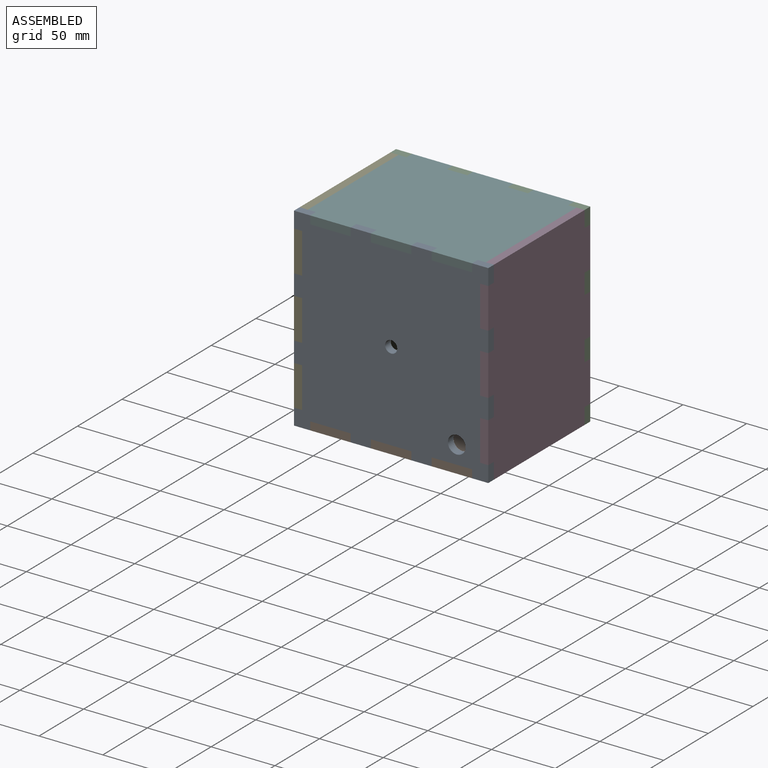
[diagram: assembled view]
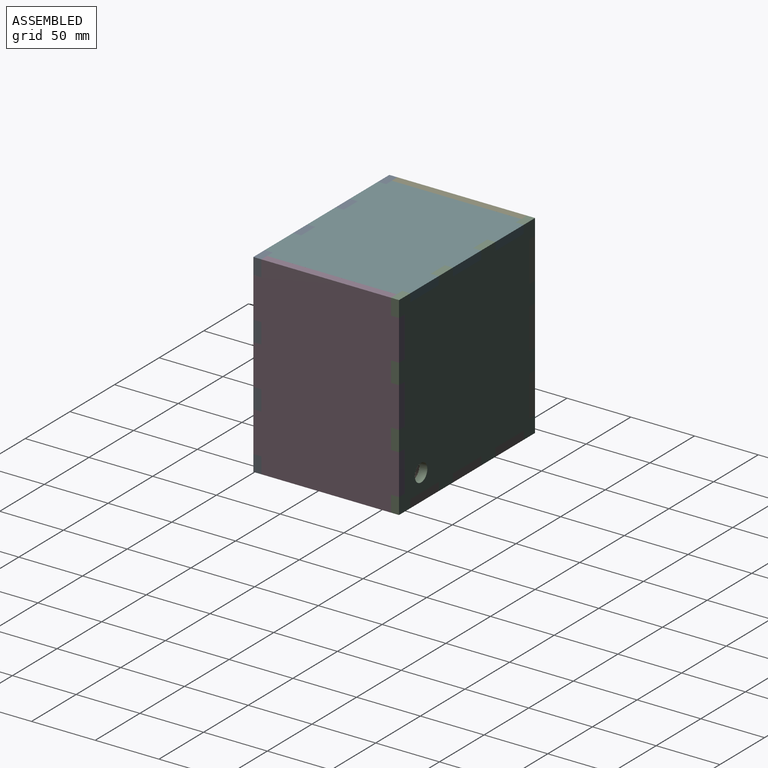
[diagram: assembled view, second angle]
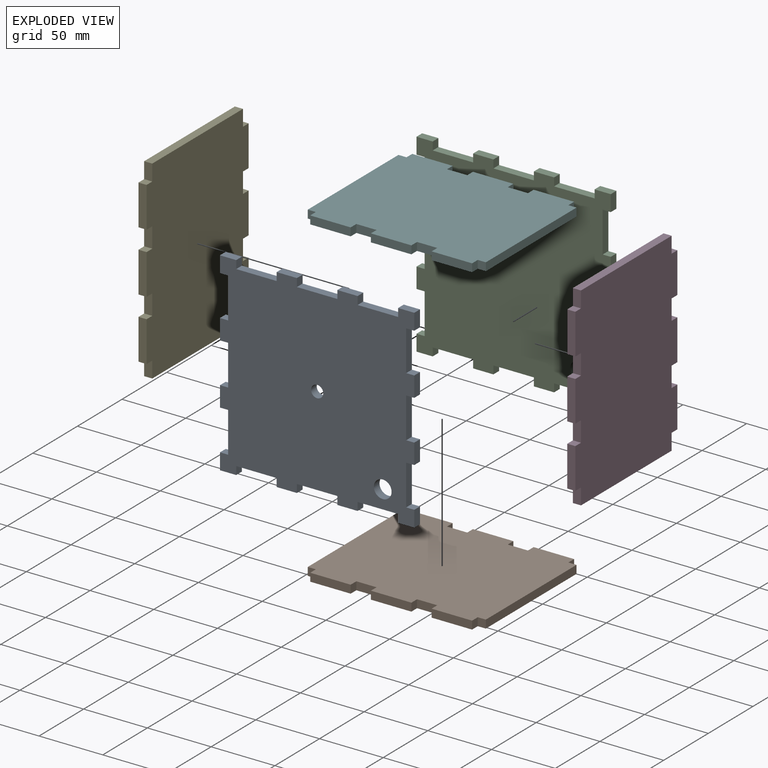
[diagram: exploded view]
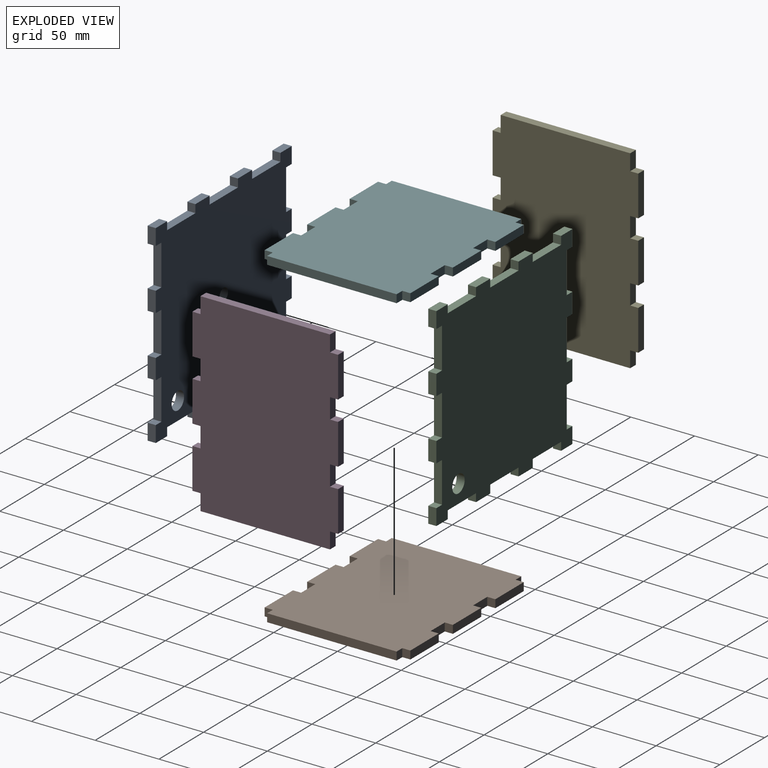
[diagram: exploded view, second angle]
ASSEMBLY  parts=6 mates=5
PART A: 56 faces, bbox 152.4x6.4x152.4 mm
  f0: plane 15.88x6.35mm, normal (-1,0,0), area 100.8mm2, adj f12,f13,f20,f25
  f1: plane 15.88x6.35mm, normal (-1,0,0), area 100.8mm2, adj f12,f13,f24,f26
  f2: plane 12.7x6.35mm, normal (-1,0,0), area 80.6mm2, adj f12,f13,f17,f19
  f3: plane 15.88x6.35mm, normal (0,0,-1), area 100.8mm2, adj f12,f13,f51,f52
  f4: plane 15.88x6.35mm, normal (0,0,-1), area 100.8mm2, adj f12,f13,f48,f49
  f5: plane 12.7x6.35mm, normal (0,0,-1), area 80.6mm2, adj f12,f13,f16,f46
  f6: plane 15.88x6.35mm, normal (1,0,0), area 100.8mm2, adj f12,f13,f42,f43
  f7: plane 15.88x6.35mm, normal (1,0,0), area 100.8mm2, adj f12,f13,f39,f40
  f8: plane 12.7x6.35mm, normal (1,0,0), area 80.6mm2, adj f9,f12,f13,f37
  f9: plane 12.7x6.35mm, normal (0,0,1), area 80.6mm2, adj f8,f12,f13,f36
  f10: plane 15.88x6.35mm, normal (0,0,1), area 100.8mm2, adj f12,f13,f33,f34
  f11: plane 15.88x6.35mm, normal (0,0,1), area 100.8mm2, adj f12,f13,f30,f31
  f12: plane 152.4x152.4mm, normal (0,1,0), area 20583.3mm2, adj f0,f1,f2,f3,f4,f5,f6,f7
  f13: plane 152.4x152.4mm, normal (0,-1,0), area 20583.3mm2, adj f0,f1,f2,f3,f4,f5,f6,f7
  f14: plane 12.7x6.35mm, normal (-1,0,0), area 80.6mm2, adj f12,f13,f15,f22
  f15: plane 12.7x6.35mm, normal (0,0,-1), area 80.6mm2, adj f12,f13,f14,f54
  f16: plane 12.7x6.35mm, normal (1,0,0), area 80.6mm2, adj f5,f12,f13,f45
  f17: plane 12.7x6.35mm, normal (0,0,1), area 80.6mm2, adj f2,f12,f13,f28
  f18: cylinder r=6.95mm len=13.91mm, axis (0,-1,0), area 277.4mm2, adj f12,f13
  f19: plane 6.35x6.35mm, normal (0,0,-1), area 40.3mm2, adj f2,f12,f13,f21
  f20: plane 6.35x6.35mm, normal (0,0,1), area 40.3mm2, adj f0,f12,f13,f21
  f21: plane 31.75x6.35mm, normal (-1,0,0), area 201.6mm2, adj f12,f13,f19,f20
  f22: plane 6.35x6.35mm, normal (0,0,1), area 40.3mm2, adj f12,f13,f14,f23
  f23: plane 31.75x6.35mm, normal (-1,0,0), area 201.6mm2, adj f12,f13,f22,f24
  f24: plane 6.35x6.35mm, normal (0,0,-1), area 40.3mm2, adj f1,f12,f13,f23
  f25: plane 6.35x6.35mm, normal (0,0,-1), area 40.3mm2, adj f0,f12,f13,f27
  f26: plane 6.35x6.35mm, normal (0,0,1), area 40.3mm2, adj f1,f12,f13,f27
  f27: plane 31.75x6.35mm, normal (-1,0,0), area 201.6mm2, adj f12,f13,f25,f26
  f28: plane 6.35x6.35mm, normal (1,0,0), area 40.3mm2, adj f12,f13,f17,f29
  f29: plane 31.75x6.35mm, normal (0,0,1), area 201.6mm2, adj f12,f13,f28,f30
  f30: plane 6.35x6.35mm, normal (-1,0,0), area 40.3mm2, adj f11,f12,f13,f29
  f31: plane 6.35x6.35mm, normal (1,0,0), area 40.3mm2, adj f11,f12,f13,f32
  f32: plane 31.75x6.35mm, normal (0,0,1), area 201.6mm2, adj f12,f13,f31,f33
  f33: plane 6.35x6.35mm, normal (-1,0,0), area 40.3mm2, adj f10,f12,f13,f32
  f34: plane 6.35x6.35mm, normal (1,0,0), area 40.3mm2, adj f10,f12,f13,f35
  f35: plane 31.75x6.35mm, normal (0,0,1), area 201.6mm2, adj f12,f13,f34,f36
  f36: plane 6.35x6.35mm, normal (-1,0,0), area 40.3mm2, adj f9,f12,f13,f35
  f37: plane 6.35x6.35mm, normal (0,0,-1), area 40.3mm2, adj f8,f12,f13,f38
  f38: plane 31.75x6.35mm, normal (1,0,0), area 201.6mm2, adj f12,f13,f37,f39
  f39: plane 6.35x6.35mm, normal (0,0,1), area 40.3mm2, adj f7,f12,f13,f38
  f40: plane 6.35x6.35mm, normal (0,0,-1), area 40.3mm2, adj f7,f12,f13,f41
  f41: plane 31.75x6.35mm, normal (1,0,0), area 201.6mm2, adj f12,f13,f40,f42
  f42: plane 6.35x6.35mm, normal (0,0,1), area 40.3mm2, adj f6,f12,f13,f41
  f43: plane 6.35x6.35mm, normal (0,0,-1), area 40.3mm2, adj f6,f12,f13,f44
  f44: plane 31.75x6.35mm, normal (1,0,0), area 201.6mm2, adj f12,f13,f43,f45
  f45: plane 6.35x6.35mm, normal (0,0,1), area 40.3mm2, adj f12,f13,f16,f44
  f46: plane 6.35x6.35mm, normal (-1,0,0), area 40.3mm2, adj f5,f12,f13,f47
  f47: plane 31.75x6.35mm, normal (0,0,-1), area 201.6mm2, adj f12,f13,f46,f48
  f48: plane 6.35x6.35mm, normal (1,0,0), area 40.3mm2, adj f4,f12,f13,f47
  f49: plane 6.35x6.35mm, normal (-1,0,0), area 40.3mm2, adj f4,f12,f13,f50
  f50: plane 31.75x6.35mm, normal (0,0,-1), area 201.6mm2, adj f12,f13,f49,f51
  f51: plane 6.35x6.35mm, normal (1,0,0), area 40.3mm2, adj f3,f12,f13,f50
  f52: plane 6.35x6.35mm, normal (-1,0,0), area 40.3mm2, adj f3,f12,f13,f53
  f53: plane 31.75x6.35mm, normal (0,0,-1), area 201.6mm2, adj f12,f13,f52,f54
  f54: plane 6.35x6.35mm, normal (1,0,0), area 40.3mm2, adj f12,f13,f15,f53
  f55: cylinder r=4.76mm len=9.53mm, axis (0,-1,0), area 190mm2, adj f12,f13
PART B: 30 faces, bbox 139.7x114.3x6.4 mm
  f0: plane 15.88x6.35mm, normal (0,1,0), area 100.8mm2, adj f1,f14,f15,f16
  f1: plane 6.35x6.35mm, normal (1,0,0), area 40.3mm2, adj f0,f2,f15,f16
  f2: plane 31.75x6.35mm, normal (0,1,0), area 201.6mm2, adj f1,f3,f15,f16
  f3: plane 6.35x6.35mm, normal (-1,0,0), area 40.3mm2, adj f2,f4,f15,f16
  f4: plane 15.88x6.35mm, normal (0,1,0), area 100.8mm2, adj f3,f5,f15,f16
  f5: plane 6.35x6.35mm, normal (1,0,0), area 40.3mm2, adj f4,f6,f15,f16
  f6: plane 31.75x6.35mm, normal (0,1,0), area 201.6mm2, adj f5,f7,f15,f16
  f7: plane 6.35x6.35mm, normal (-1,0,0), area 40.3mm2, adj f6,f8,f15,f16
  f8: plane 6.35x6.35mm, normal (0,1,0), area 40.3mm2, adj f7,f9,f15,f16
  f9: plane 101.6x6.35mm, normal (-1,0,0), area 645.2mm2, adj f8,f15,f16,f25
  f10: plane 101.6x6.35mm, normal (1,0,0), area 645.2mm2, adj f11,f15,f16,f26
  f11: plane 6.35x6.35mm, normal (0,1,0), area 40.3mm2, adj f10,f12,f15,f16
  f12: plane 6.35x6.35mm, normal (1,0,0), area 40.3mm2, adj f11,f13,f15,f16
  f13: plane 31.75x6.35mm, normal (0,1,0), area 201.6mm2, adj f12,f14,f15,f16
  f14: plane 6.35x6.35mm, normal (-1,0,0), area 40.3mm2, adj f0,f13,f15,f16
  f15: plane 139.7x114.3mm, normal (0,0,1), area 15403.2mm2, adj f0,f1,f2,f3,f4,f5,f6,f7
  f16: plane 139.7x114.3mm, normal (0,0,-1), area 15403.2mm2, adj f0,f1,f2,f3,f4,f5,f6,f7
  f17: plane 15.88x6.35mm, normal (0,-1,0), area 100.8mm2, adj f15,f16,f18,f29
  f18: plane 6.35x6.35mm, normal (1,0,0), area 40.3mm2, adj f15,f16,f17,f19
  f19: plane 31.75x6.35mm, normal (0,-1,0), area 201.6mm2, adj f15,f16,f18,f20
  f20: plane 6.35x6.35mm, normal (-1,0,0), area 40.3mm2, adj f15,f16,f19,f21
  f21: plane 15.88x6.35mm, normal (0,-1,0), area 100.8mm2, adj f15,f16,f20,f22
  f22: plane 6.35x6.35mm, normal (1,0,0), area 40.3mm2, adj f15,f16,f21,f23
  f23: plane 31.75x6.35mm, normal (0,-1,0), area 201.6mm2, adj f15,f16,f22,f24
  f24: plane 6.35x6.35mm, normal (-1,0,0), area 40.3mm2, adj f15,f16,f23,f25
  f25: plane 6.35x6.35mm, normal (0,-1,0), area 40.3mm2, adj f9,f15,f16,f24
  f26: plane 6.35x6.35mm, normal (0,-1,0), area 40.3mm2, adj f10,f15,f16,f27
  f27: plane 6.35x6.35mm, normal (1,0,0), area 40.3mm2, adj f15,f16,f26,f28
  f28: plane 31.75x6.35mm, normal (0,-1,0), area 201.6mm2, adj f15,f16,f27,f29
  f29: plane 6.35x6.35mm, normal (-1,0,0), area 40.3mm2, adj f15,f16,f17,f28
PART C: 55 faces, bbox 152.4x6.4x152.4 mm
  f0: plane 15.88x6.35mm, normal (-1,0,0), area 100.8mm2, adj f12,f13,f20,f25
  f1: plane 15.88x6.35mm, normal (-1,0,0), area 100.8mm2, adj f12,f13,f24,f26
  f2: plane 12.7x6.35mm, normal (-1,0,0), area 80.6mm2, adj f12,f13,f17,f19
  f3: plane 15.88x6.35mm, normal (0,0,-1), area 100.8mm2, adj f12,f13,f51,f52
  f4: plane 15.88x6.35mm, normal (0,0,-1), area 100.8mm2, adj f12,f13,f48,f49
  f5: plane 12.7x6.35mm, normal (0,0,-1), area 80.6mm2, adj f12,f13,f16,f46
  f6: plane 15.88x6.35mm, normal (1,0,0), area 100.8mm2, adj f12,f13,f42,f43
  f7: plane 15.88x6.35mm, normal (1,0,0), area 100.8mm2, adj f12,f13,f39,f40
  f8: plane 12.7x6.35mm, normal (1,0,0), area 80.6mm2, adj f9,f12,f13,f37
  f9: plane 12.7x6.35mm, normal (0,0,1), area 80.6mm2, adj f8,f12,f13,f36
  f10: plane 15.88x6.35mm, normal (0,0,1), area 100.8mm2, adj f12,f13,f33,f34
  f11: plane 15.88x6.35mm, normal (0,0,1), area 100.8mm2, adj f12,f13,f30,f31
  f12: plane 152.4x152.4mm, normal (0,-1,0), area 20654.5mm2, adj f0,f1,f2,f3,f4,f5,f6,f7
  f13: plane 152.4x152.4mm, normal (0,1,0), area 20654.5mm2, adj f0,f1,f2,f3,f4,f5,f6,f7
  f14: plane 12.7x6.35mm, normal (-1,0,0), area 80.6mm2, adj f12,f13,f15,f22
  f15: plane 12.7x6.35mm, normal (0,0,-1), area 80.6mm2, adj f12,f13,f14,f54
  f16: plane 12.7x6.35mm, normal (1,0,0), area 80.6mm2, adj f5,f12,f13,f45
  f17: plane 12.7x6.35mm, normal (0,0,1), area 80.6mm2, adj f2,f12,f13,f28
  f18: cylinder r=6.95mm len=13.91mm, axis (0,1,0), area 277.4mm2, adj f12,f13
  f19: plane 6.35x6.35mm, normal (0,0,-1), area 40.3mm2, adj f2,f12,f13,f21
  f20: plane 6.35x6.35mm, normal (0,0,1), area 40.3mm2, adj f0,f12,f13,f21
  f21: plane 31.75x6.35mm, normal (-1,0,0), area 201.6mm2, adj f12,f13,f19,f20
  f22: plane 6.35x6.35mm, normal (0,0,1), area 40.3mm2, adj f12,f13,f14,f23
  f23: plane 31.75x6.35mm, normal (-1,0,0), area 201.6mm2, adj f12,f13,f22,f24
  f24: plane 6.35x6.35mm, normal (0,0,-1), area 40.3mm2, adj f1,f12,f13,f23
  f25: plane 6.35x6.35mm, normal (0,0,-1), area 40.3mm2, adj f0,f12,f13,f27
  f26: plane 6.35x6.35mm, normal (0,0,1), area 40.3mm2, adj f1,f12,f13,f27
  f27: plane 31.75x6.35mm, normal (-1,0,0), area 201.6mm2, adj f12,f13,f25,f26
  f28: plane 6.35x6.35mm, normal (1,0,0), area 40.3mm2, adj f12,f13,f17,f29
  f29: plane 31.75x6.35mm, normal (0,0,1), area 201.6mm2, adj f12,f13,f28,f30
  f30: plane 6.35x6.35mm, normal (-1,0,0), area 40.3mm2, adj f11,f12,f13,f29
  f31: plane 6.35x6.35mm, normal (1,0,0), area 40.3mm2, adj f11,f12,f13,f32
  f32: plane 31.75x6.35mm, normal (0,0,1), area 201.6mm2, adj f12,f13,f31,f33
  f33: plane 6.35x6.35mm, normal (-1,0,0), area 40.3mm2, adj f10,f12,f13,f32
  f34: plane 6.35x6.35mm, normal (1,0,0), area 40.3mm2, adj f10,f12,f13,f35
  f35: plane 31.75x6.35mm, normal (0,0,1), area 201.6mm2, adj f12,f13,f34,f36
  f36: plane 6.35x6.35mm, normal (-1,0,0), area 40.3mm2, adj f9,f12,f13,f35
  f37: plane 6.35x6.35mm, normal (0,0,-1), area 40.3mm2, adj f8,f12,f13,f38
  f38: plane 31.75x6.35mm, normal (1,0,0), area 201.6mm2, adj f12,f13,f37,f39
  f39: plane 6.35x6.35mm, normal (0,0,1), area 40.3mm2, adj f7,f12,f13,f38
  f40: plane 6.35x6.35mm, normal (0,0,-1), area 40.3mm2, adj f7,f12,f13,f41
  f41: plane 31.75x6.35mm, normal (1,0,0), area 201.6mm2, adj f12,f13,f40,f42
  f42: plane 6.35x6.35mm, normal (0,0,1), area 40.3mm2, adj f6,f12,f13,f41
  f43: plane 6.35x6.35mm, normal (0,0,-1), area 40.3mm2, adj f6,f12,f13,f44
  f44: plane 31.75x6.35mm, normal (1,0,0), area 201.6mm2, adj f12,f13,f43,f45
  f45: plane 6.35x6.35mm, normal (0,0,1), area 40.3mm2, adj f12,f13,f16,f44
  f46: plane 6.35x6.35mm, normal (-1,0,0), area 40.3mm2, adj f5,f12,f13,f47
  f47: plane 31.75x6.35mm, normal (0,0,-1), area 201.6mm2, adj f12,f13,f46,f48
  f48: plane 6.35x6.35mm, normal (1,0,0), area 40.3mm2, adj f4,f12,f13,f47
  f49: plane 6.35x6.35mm, normal (-1,0,0), area 40.3mm2, adj f4,f12,f13,f50
  f50: plane 31.75x6.35mm, normal (0,0,-1), area 201.6mm2, adj f12,f13,f49,f51
  f51: plane 6.35x6.35mm, normal (1,0,0), area 40.3mm2, adj f3,f12,f13,f50
  f52: plane 6.35x6.35mm, normal (-1,0,0), area 40.3mm2, adj f3,f12,f13,f53
  f53: plane 31.75x6.35mm, normal (0,0,-1), area 201.6mm2, adj f12,f13,f52,f54
  f54: plane 6.35x6.35mm, normal (1,0,0), area 40.3mm2, adj f12,f13,f15,f53
PART D: 30 faces, bbox 6.4x114.3x152.4 mm
  f0: plane 6.35x6.35mm, normal (0,0,1), area 40.3mm2, adj f1,f14,f15,f16
  f1: plane 31.75x6.35mm, normal (0,1,0), area 201.6mm2, adj f0,f2,f15,f16
  f2: plane 6.35x6.35mm, normal (0,0,-1), area 40.3mm2, adj f1,f3,f15,f16
  f3: plane 15.88x6.35mm, normal (0,1,0), area 100.8mm2, adj f2,f4,f15,f16
  f4: plane 6.35x6.35mm, normal (0,0,1), area 40.3mm2, adj f3,f5,f15,f16
  f5: plane 31.75x6.35mm, normal (0,1,0), area 201.6mm2, adj f4,f6,f15,f16
  f6: plane 6.35x6.35mm, normal (0,0,-1), area 40.3mm2, adj f5,f7,f15,f16
  f7: plane 15.88x6.35mm, normal (0,1,0), area 100.8mm2, adj f6,f8,f15,f16
  f8: plane 6.35x6.35mm, normal (0,0,1), area 40.3mm2, adj f7,f9,f15,f16
  f9: plane 31.75x6.35mm, normal (0,1,0), area 201.6mm2, adj f8,f10,f15,f16
  f10: plane 6.35x6.35mm, normal (0,0,-1), area 40.3mm2, adj f9,f11,f15,f16
  f11: plane 12.7x6.35mm, normal (0,1,0), area 80.6mm2, adj f10,f12,f15,f16
  f12: plane 101.6x6.35mm, normal (0,0,-1), area 645.2mm2, adj f11,f15,f16,f28
  f13: plane 101.6x6.35mm, normal (0,0,1), area 645.2mm2, adj f14,f15,f16,f29
  f14: plane 12.7x6.35mm, normal (0,1,0), area 80.6mm2, adj f0,f13,f15,f16
  f15: plane 152.4x114.3mm, normal (-1,0,0), area 16693.5mm2, adj f0,f1,f2,f3,f4,f5,f6,f7
  f16: plane 152.4x114.3mm, normal (1,0,0), area 16693.5mm2, adj f0,f1,f2,f3,f4,f5,f6,f7
  f17: plane 6.35x6.35mm, normal (0,0,1), area 40.3mm2, adj f15,f16,f18,f29
  f18: plane 31.75x6.35mm, normal (0,-1,0), area 201.6mm2, adj f15,f16,f17,f19
  f19: plane 6.35x6.35mm, normal (0,0,-1), area 40.3mm2, adj f15,f16,f18,f20
  f20: plane 15.88x6.35mm, normal (0,-1,0), area 100.8mm2, adj f15,f16,f19,f21
  f21: plane 6.35x6.35mm, normal (0,0,1), area 40.3mm2, adj f15,f16,f20,f22
  f22: plane 31.75x6.35mm, normal (0,-1,0), area 201.6mm2, adj f15,f16,f21,f23
  f23: plane 6.35x6.35mm, normal (0,0,-1), area 40.3mm2, adj f15,f16,f22,f24
  f24: plane 15.88x6.35mm, normal (0,-1,0), area 100.8mm2, adj f15,f16,f23,f25
  f25: plane 6.35x6.35mm, normal (0,0,1), area 40.3mm2, adj f15,f16,f24,f26
  f26: plane 31.75x6.35mm, normal (0,-1,0), area 201.6mm2, adj f15,f16,f25,f27
  f27: plane 6.35x6.35mm, normal (0,0,-1), area 40.3mm2, adj f15,f16,f26,f28
  f28: plane 12.7x6.35mm, normal (0,-1,0), area 80.6mm2, adj f12,f15,f16,f27
  f29: plane 12.7x6.35mm, normal (0,-1,0), area 80.6mm2, adj f13,f15,f16,f17
PART E: same geometry as D
PART F: same geometry as B
PLACE A at identity
PLACE B t=(0,0,-146.05)mm
PLACE C at identity fixed
PLACE D t=(146.05,0,0)mm
PLACE E at identity
PLACE F at identity
MATE fastened F.f15 <-> C.f9  axis (0,0,1) through (139.7,-6.35,152.4)mm
MATE fastened E.f15 <-> C.f2  axis (-1,0,0) through (0,-6.35,139.7)mm
MATE fastened B.f16 <-> C.f15  axis (0,0,-1) through (12.7,-6.35,0)mm
MATE fastened A.f12 <-> E.f28  axis (0,1,0) through (0,-107.95,0)mm
MATE fastened D.f16 <-> C.f16  axis (1,0,0) through (152.4,-6.35,12.7)mm
